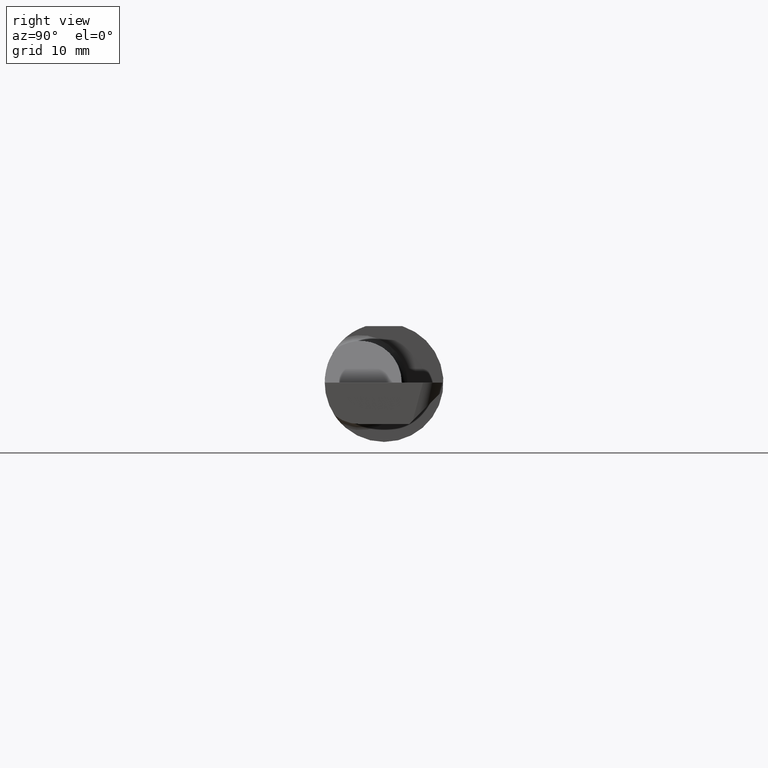
[diagram: clean part render]
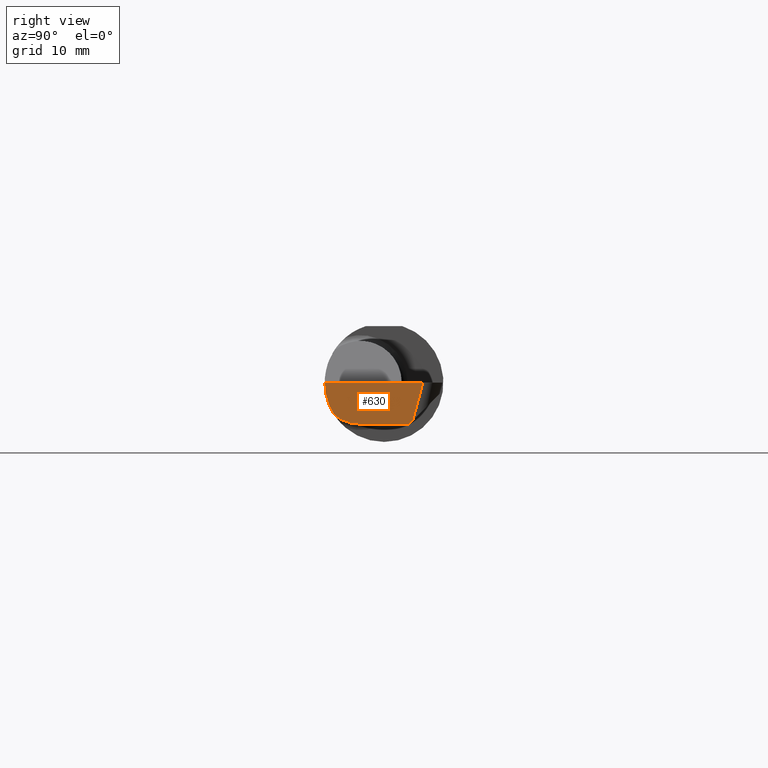
[diagram: same view with one face highlighted and labeled with its STEP entity id]
A machine part, right view. The second image highlights one B-rep face of the part: STEP entity #630.
In plain terms, the highlighted planar face has unit normal (-0.9992, 0.0349, 0.0175).
Its self-contained STEP definition (entity closure, byte-faithful):
#6 = DIRECTION ( 'NONE',  ( -0.03489949670249561930, -0.9993908270190959842, 0.000000000000000000 ) ) ;
#31 = VERTEX_POINT ( 'NONE', #392 ) ;
#36 = ORIENTED_EDGE ( 'NONE', *, *, #86, .F. ) ;
#43 = ORIENTED_EDGE ( 'NONE', *, *, #472, .T. ) ;
#46 = VERTEX_POINT ( 'NONE', #323 ) ;
#65 = CARTESIAN_POINT ( 'NONE',  ( 2.984481223124517690, -0.2080850024789288599, -0.1382955322609668858 ) ) ;
#72 = CARTESIAN_POINT ( 'NONE',  ( 2.984481223124517690, -0.2080850024789288599, -0.1382955322609668858 ) ) ;
#86 = EDGE_CURVE ( 'NONE', #31, #46, #186, .T. ) ;
#101 =( BOUNDED_CURVE ( )  B_SPLINE_CURVE ( 3, ( #574, #480, #199, #528 ),
 .UNSPECIFIED., .F., .T. ) 
 B_SPLINE_CURVE_WITH_KNOTS ( ( 4, 4 ),
 ( 0.4474640105399725343, 1.107026853503877861 ),
 .UNSPECIFIED. ) 
 CURVE ( )  GEOMETRIC_REPRESENTATION_ITEM ( )  RATIONAL_B_SPLINE_CURVE ( ( 1.000000000000000000, 0.9640754331822831702, 0.9640754331822831702, 1.000000000000000000 ) ) 
 REPRESENTATION_ITEM ( '' )  );
#114 = VECTOR ( 'NONE', #6, 39.37007874015748854 ) ;
#130 = EDGE_CURVE ( 'NONE', #562, #476, #168, .T. ) ;
#168 =( BOUNDED_CURVE ( )  B_SPLINE_CURVE ( 3, ( #65, #556, #396, #615 ),
 .UNSPECIFIED., .F., .T. ) 
 B_SPLINE_CURVE_WITH_KNOTS ( ( 4, 4 ),
 ( 6.160376845738947615, 6.746954780470606039 ),
 .UNSPECIFIED. ) 
 CURVE ( )  GEOMETRIC_REPRESENTATION_ITEM ( )  RATIONAL_B_SPLINE_CURVE ( ( 1.000000000000000000, 0.9715321379117538569, 0.9715321379117538569, 1.000000000000000000 ) ) 
 REPRESENTATION_ITEM ( '' )  );
#180 = LINE ( 'NONE', #675, #416 ) ;
#186 = LINE ( 'NONE', #348, #495 ) ;
#199 = CARTESIAN_POINT ( 'NONE',  ( 2.986216381845219203, -0.1400387324517229914, -0.1750000000000000999 ) ) ;
#201 = VERTEX_POINT ( 'NONE', #521 ) ;
#222 = PLANE ( 'NONE',  #519 ) ;
#261 = CARTESIAN_POINT ( 'NONE',  ( 2.999952099699010333, 0.1657741035941333874, 0.000000000000000000 ) ) ;
#266 = ORIENTED_EDGE ( 'NONE', *, *, #486, .T. ) ;
#280 = EDGE_CURVE ( 'NONE', #562, #46, #101, .T. ) ;
#286 = CARTESIAN_POINT ( 'NONE',  ( 2.999952099699010333, 0.1657741035941333874, 0.000000000000000000 ) ) ;
#319 = ORIENTED_EDGE ( 'NONE', *, *, #564, .F. ) ;
#322 = CARTESIAN_POINT ( 'NONE',  ( 2.985438186182187259, -0.2498499999999999888, 0.000000000000000000 ) ) ;
#323 = CARTESIAN_POINT ( 'NONE',  ( 2.987584882537838826, -0.1008499999999999674, -0.1750000000000000722 ) ) ;
#340 = FACE_OUTER_BOUND ( 'NONE', #506, .T. ) ;
#348 = CARTESIAN_POINT ( 'NONE',  ( 2.988089862307433453, -0.08638927141514789187, -0.1750000000000000722 ) ) ;
#349 = ORIENTED_EDGE ( 'NONE', *, *, #130, .F. ) ;
#372 = CARTESIAN_POINT ( 'NONE',  ( 2.995574489715794542, 0.1205682248496117576, -0.1602561122985578790 ) ) ;
#392 = CARTESIAN_POINT ( 'NONE',  ( 2.994802109425249714, 0.1058243371481696615, -0.1750000000000001277 ) ) ;
#396 = CARTESIAN_POINT ( 'NONE',  ( 2.984572483848591862, -0.2498499999999999610, -0.04956584089959716749 ) ) ;
#416 = VECTOR ( 'NONE', #510, 39.37007874015748854 ) ;
#445 = LINE ( 'NONE', #709, #520 ) ;
#464 = DIRECTION ( 'NONE',  ( -0.9992386149554828290, 0.03489418134010831979, 0.01745240643728358798 ) ) ;
#472 = EDGE_CURVE ( 'NONE', #201, #476, #541, .T. ) ;
#476 = VERTEX_POINT ( 'NONE', #322 ) ;
#480 = CARTESIAN_POINT ( 'NONE',  ( 2.985143277913549831, -0.1771157075472507281, -0.1623092683844332140 ) ) ;
#486 = EDGE_CURVE ( 'NONE', #681, #201, #445, .T. ) ;
#495 = VECTOR ( 'NONE', #612, 39.37007874015748143 ) ;
#496 = DIRECTION ( 'NONE',  ( 0.02590004391968273034, 0.2587322210431824976, 0.9656017944882975268 ) ) ;
#506 = EDGE_LOOP ( 'NONE', ( #319, #266, #43, #349, #546, #36 ) ) ;
#510 = DIRECTION ( 'NONE',  ( -0.03701744261649914797, -0.7066221440565398915, -0.7066221440565477740 ) ) ;
#519 = AXIS2_PLACEMENT_3D ( 'NONE', #286, #464, #551 ) ;
#520 = VECTOR ( 'NONE', #496, 39.37007874015747433 ) ;
#521 = CARTESIAN_POINT ( 'NONE',  ( 2.999872990785927396, 0.1635087207221616878, 0.000000000000000000 ) ) ;
#528 = CARTESIAN_POINT ( 'NONE',  ( 2.987584882537838826, -0.1008499999999999674, -0.1750000000000000722 ) ) ;
#541 = LINE ( 'NONE', #261, #114 ) ;
#546 = ORIENTED_EDGE ( 'NONE', *, *, #280, .T. ) ;
#551 = DIRECTION ( 'NONE',  ( -0.03489949670249561930, -0.9993908270190959842, 0.000000000000000000 ) ) ;
#556 = CARTESIAN_POINT ( 'NONE',  ( 2.984244149176539018, -0.2355204011147991328, -0.09701513151466779894 ) ) ;
#562 = VERTEX_POINT ( 'NONE', #72 ) ;
#564 = EDGE_CURVE ( 'NONE', #681, #31, #180, .T. ) ;
#574 = CARTESIAN_POINT ( 'NONE',  ( 2.984481223124517690, -0.2080850024789288599, -0.1382955322609668858 ) ) ;
#612 = DIRECTION ( 'NONE',  ( -0.03489949670249561930, -0.9993908270190959842, 1.222058880457094148E-16 ) ) ;
#615 = CARTESIAN_POINT ( 'NONE',  ( 2.985438186182187259, -0.2498499999999999888, 0.000000000000000000 ) ) ;
#630 = ADVANCED_FACE ( 'NONE', ( #340 ), #222, .F. ) ;
#675 = CARTESIAN_POINT ( 'NONE',  ( 2.997444159268687347, 0.1562581541034807064, -0.1245661830446885138 ) ) ;
#681 = VERTEX_POINT ( 'NONE', #372 ) ;
#709 = CARTESIAN_POINT ( 'NONE',  ( 2.999888224582237584, 0.1636609009256532465, 0.0005679442513367036422 ) ) ;